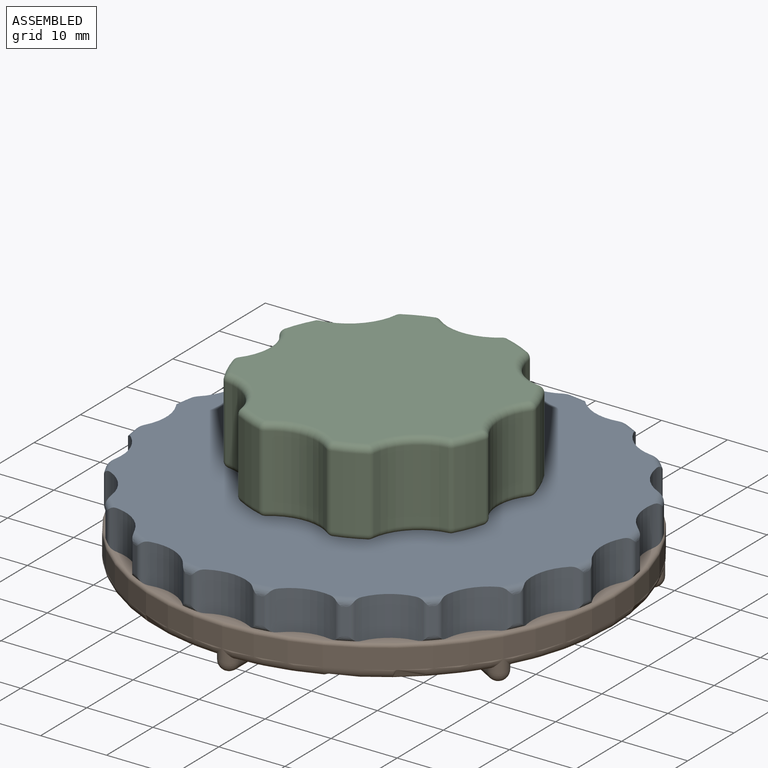
[diagram: assembled view]
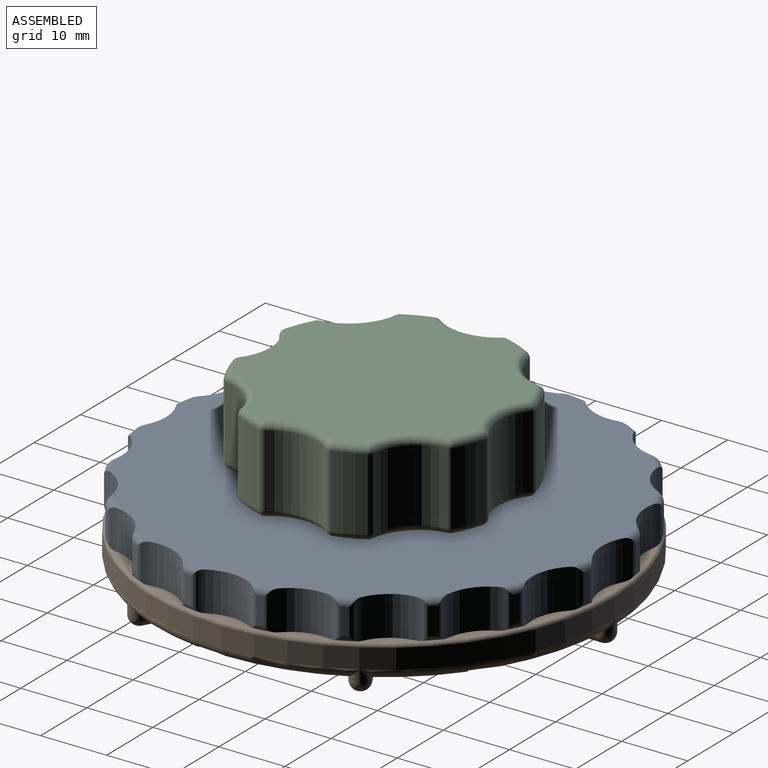
[diagram: assembled view, second angle]
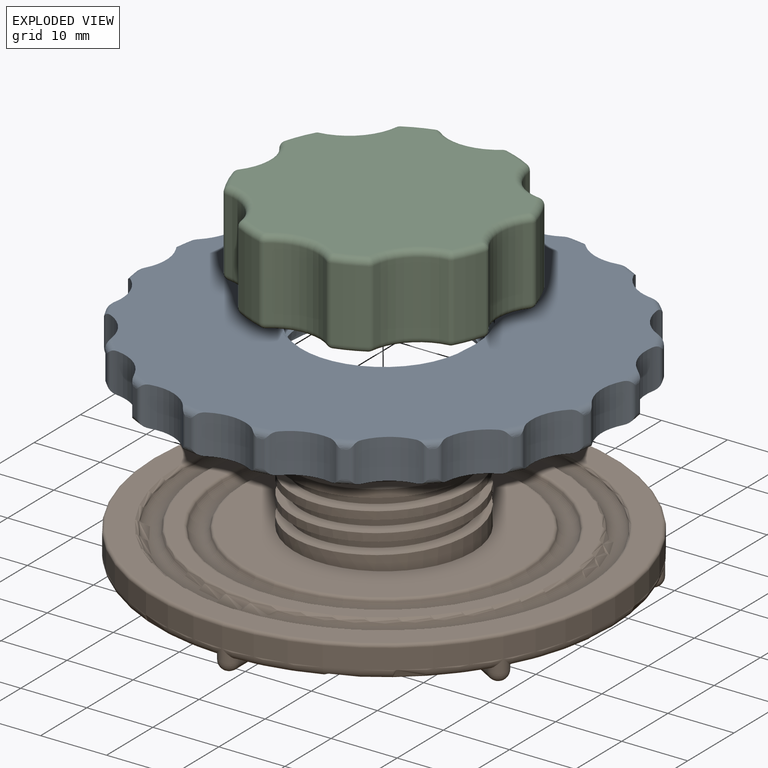
[diagram: exploded view]
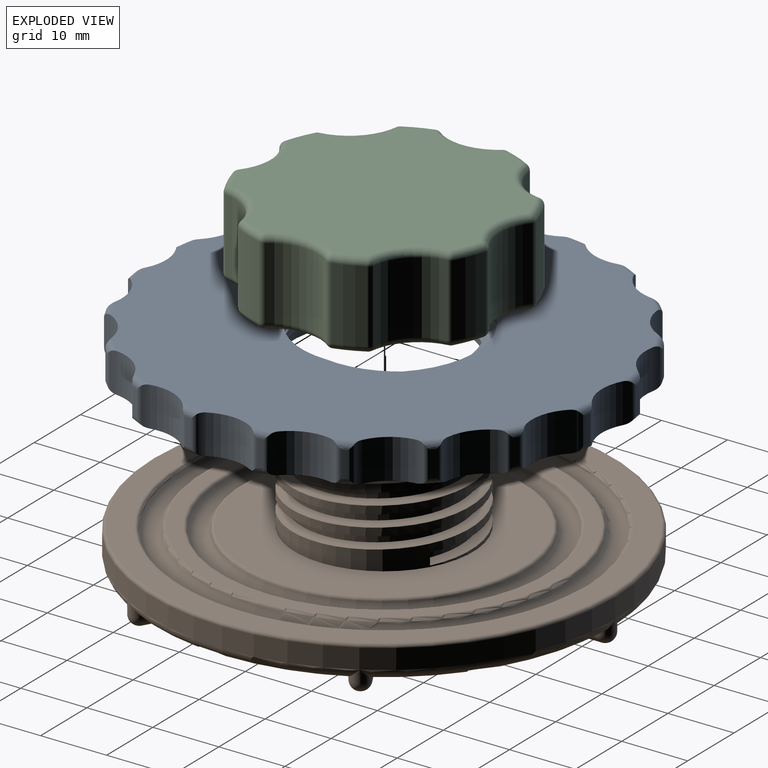
[diagram: exploded view, second angle]
ASSEMBLY  parts=3 mates=4
PART A: 136 faces, bbox 70.2x70.2x8.9 mm
  f0: plane 43x43mm, normal (0,0,-1), area 535.4mm2, adj f34,f135
  f1: plane 28.93x28.93mm, normal (0,0,-1), area 41.8mm2, adj f29,f135
  f2: cylinder r=35mm len=4mm, axis (0,0,-1), area 3.8mm2, adj f87,f88,f89,f90
  f3: cylinder r=35mm len=4mm, axis (0,0,-1), area 3.8mm2, adj f91,f92,f93,f94
  f4: cylinder r=35mm len=4mm, axis (0,0,-1), area 3.8mm2, adj f95,f96,f97,f98
  f5: cylinder r=35mm len=4mm, axis (0,0,-1), area 3.8mm2, adj f99,f100,f101,f102
  f6: cylinder r=35mm len=4mm, axis (0,0,-1), area 3.8mm2, adj f103,f104,f105,f106
  f7: cylinder r=35mm len=4mm, axis (0,0,-1), area 3.8mm2, adj f107,f108,f109,f110
  f8: cylinder r=35mm len=4mm, axis (0,0,-1), area 3.8mm2, adj f111,f112,f113,f114
  f9: cylinder r=35mm len=4mm, axis (0,0,-1), area 3.8mm2, adj f115,f116,f117,f118
  f10: cylinder r=35mm len=4mm, axis (0,0,-1), area 3.8mm2, adj f119,f120,f121,f122
  f11: cylinder r=35mm len=4mm, axis (0,0,-1), area 3.8mm2, adj f123,f124,f125,f126
  f12: cylinder r=35mm len=4mm, axis (0,0,-1), area 3.8mm2, adj f127,f128,f129,f130
  f13: cylinder r=35mm len=4mm, axis (0,0,-1), area 3.8mm2, adj f131,f132,f133,f134
  f14: cylinder r=35mm len=4mm, axis (0,0,-1), area 3.8mm2, adj f55,f56,f57,f58
  f15: cylinder r=35mm len=4mm, axis (0,0,-1), area 3.8mm2, adj f59,f60,f61,f62
  f16: cylinder r=35mm len=4mm, axis (0,0,-1), area 3.8mm2, adj f63,f64,f65,f66
  f17: cylinder r=35mm len=4mm, axis (0,0,-1), area 3.8mm2, adj f67,f68,f69,f70
  f18: cylinder r=35mm len=4mm, axis (0,0,-1), area 3.8mm2, adj f83,f84,f85,f86
  f19: cylinder r=35mm len=4mm, axis (0,0,-1), area 3.8mm2, adj f79,f80,f81,f82
  f20: cylinder r=35mm len=4mm, axis (0,0,-1), area 3.8mm2, adj f75,f76,f77,f78
  f21: plane 55x55mm, normal (0,0,-1), area 490.1mm2, adj f33,f34
  f22: plane 67.68x67.68mm, normal (0,0,-1), area 619.7mm2, adj f33,f35,f36,f37,f38,f39,f40,f41
  f23: bspline ~33.49x29mm, area 214.5mm2, adj f24,f27,f28,f29,f31,f32
  f24: cylinder r=12.5mm len=25mm, axis (0,0,1), area 130.9mm2, adj f23,f25,f31,f32
  f25: bspline ~33.49x29mm, area 206.6mm2, adj f24,f26,f27,f28,f31
  f26: plane 1.5x0.38mm, normal (0,-1,0), area 0.3mm2, adj f25,f29,f32
  f27: cylinder r=14mm len=28mm, axis (0,0,-1), area 110mm2, adj f23,f25,f28,f29
  f28: cylinder r=14mm len=28mm, axis (0,0,-1), area 36.8mm2, adj f23,f25,f27,f31
  f29: cylinder r=14mm len=28mm, axis (0,0,-1), area 126.8mm2, adj f1,f23,f26,f27,f32
  f30: cylinder r=35mm len=4mm, axis (0,0,-1), area 3.8mm2, adj f71,f72,f73,f74
  f31: plane 68.11x68.11mm, normal (0,0,1), area 2984.1mm2, adj f23,f24,f25,f28,f35,f36,f37,f38
  f32: plane 27.93x14.44mm, normal (0,0,-1), area 49.6mm2, adj f23,f24,f26,f29
  f33: torus R=29mm, axis (0,0,-1), area 858.7mm2, adj f21,f22
  f34: torus R=23mm, axis (0,0,-1), area 681mm2, adj f0,f21
  f35: cylinder r=7mm len=8.52mm, axis (0,0,1), area 54.3mm2, adj f22,f31,f71,f72,f74,f75,f77,f78
  f36: cylinder r=7mm len=8.1mm, axis (0,0,1), area 54.3mm2, adj f22,f31,f75,f76,f78,f79,f81,f82
  f37: cylinder r=7mm len=6.89mm, axis (0,0,1), area 54.3mm2, adj f22,f31,f79,f80,f82,f83,f85,f86
  f38: cylinder r=7mm len=6.89mm, axis (0,0,1), area 54.3mm2, adj f22,f31,f83,f84,f86,f87,f89,f90
  f39: cylinder r=7mm len=8.1mm, axis (0,0,1), area 54.3mm2, adj f22,f31,f67,f68,f70,f71,f73,f74
  f40: cylinder r=7mm len=6.89mm, axis (0,0,1), area 54.3mm2, adj f22,f31,f63,f64,f66,f67,f69,f70
  f41: cylinder r=7mm len=6.89mm, axis (0,0,1), area 54.3mm2, adj f22,f31,f59,f60,f62,f63,f65,f66
  f42: cylinder r=7mm len=8.1mm, axis (0,0,1), area 54.3mm2, adj f22,f31,f55,f56,f58,f59,f61,f62
  f43: cylinder r=7mm len=8.52mm, axis (0,0,1), area 54.3mm2, adj f22,f31,f55,f57,f58,f131,f132,f133
  f44: cylinder r=7mm len=8.1mm, axis (0,0,1), area 54.3mm2, adj f22,f31,f127,f128,f130,f132,f133,f134
  f45: cylinder r=7mm len=6.89mm, axis (0,0,1), area 54.3mm2, adj f22,f31,f123,f124,f126,f127,f129,f130
  f46: cylinder r=7mm len=6.89mm, axis (0,0,1), area 54.3mm2, adj f22,f31,f119,f120,f122,f123,f125,f126
  f47: cylinder r=7mm len=8.1mm, axis (0,0,1), area 54.3mm2, adj f22,f31,f115,f116,f118,f119,f121,f122
  f48: cylinder r=7mm len=8.52mm, axis (0,0,1), area 54.3mm2, adj f22,f31,f111,f112,f114,f115,f117,f118
  f49: cylinder r=7mm len=8.1mm, axis (0,0,1), area 54.3mm2, adj f22,f31,f107,f108,f110,f111,f113,f114
  f50: cylinder r=7mm len=6.89mm, axis (0,0,1), area 54.3mm2, adj f22,f31,f103,f104,f106,f107,f109,f110
  f51: cylinder r=7mm len=6.89mm, axis (0,0,1), area 54.3mm2, adj f22,f31,f99,f100,f102,f103,f105,f106
  f52: cylinder r=7mm len=8.1mm, axis (0,0,1), area 54.3mm2, adj f22,f31,f95,f96,f98,f99,f101,f102
  f53: cylinder r=7mm len=8.52mm, axis (0,0,1), area 54.3mm2, adj f22,f31,f91,f92,f94,f95,f97,f98
  f54: cylinder r=7mm len=8.1mm, axis (0,0,1), area 54.3mm2, adj f22,f31,f87,f88,f90,f91,f93,f94
  f55: torus R=34mm, axis (0,0,1), area 3.8mm2, adj f14,f31,f42,f43,f56,f57
  f56: cylinder r=1mm len=5.42mm, axis (0,0,-1), area 3.8mm2, adj f14,f42,f55,f58
  f57: cylinder r=1mm len=5.42mm, axis (0,0,-1), area 3.8mm2, adj f14,f43,f55,f58
  f58: torus R=34mm, axis (0,0,1), area 3.8mm2, adj f14,f22,f42,f43,f56,f57
  f59: torus R=34mm, axis (0,0,1), area 3.8mm2, adj f15,f31,f41,f42,f60,f61
  f60: cylinder r=1mm len=5.42mm, axis (0,0,-1), area 3.8mm2, adj f15,f41,f59,f62
  f61: cylinder r=1mm len=5.42mm, axis (0,0,-1), area 3.8mm2, adj f15,f42,f59,f62
  f62: torus R=34mm, axis (0,0,1), area 3.8mm2, adj f15,f22,f41,f42,f60,f61
  f63: torus R=34mm, axis (0,0,1), area 3.8mm2, adj f16,f31,f40,f41,f64,f65
  f64: cylinder r=1mm len=5.42mm, axis (0,0,-1), area 3.8mm2, adj f16,f40,f63,f66
  f65: cylinder r=1mm len=5.42mm, axis (0,0,-1), area 3.8mm2, adj f16,f41,f63,f66
  f66: torus R=34mm, axis (0,0,1), area 3.8mm2, adj f16,f22,f40,f41,f64,f65
  f67: torus R=34mm, axis (0,0,1), area 3.8mm2, adj f17,f31,f39,f40,f68,f69
  f68: cylinder r=1mm len=5.42mm, axis (0,0,-1), area 3.8mm2, adj f17,f39,f67,f70
  f69: cylinder r=1mm len=5.42mm, axis (0,0,-1), area 3.8mm2, adj f17,f40,f67,f70
  f70: torus R=34mm, axis (0,0,1), area 3.8mm2, adj f17,f22,f39,f40,f68,f69
  f71: torus R=34mm, axis (0,0,1), area 3.8mm2, adj f30,f31,f35,f39,f72,f73
  f72: cylinder r=1mm len=5.42mm, axis (0,0,-1), area 3.8mm2, adj f30,f35,f71,f74
  f73: cylinder r=1mm len=5.42mm, axis (0,0,-1), area 3.8mm2, adj f30,f39,f71,f74
  f74: torus R=34mm, axis (0,0,1), area 3.8mm2, adj f22,f30,f35,f39,f72,f73
  f75: torus R=34mm, axis (0,0,1), area 3.8mm2, adj f20,f31,f35,f36,f76,f77
  f76: cylinder r=1mm len=5.42mm, axis (0,0,-1), area 3.8mm2, adj f20,f36,f75,f78
  f77: cylinder r=1mm len=5.42mm, axis (0,0,-1), area 3.8mm2, adj f20,f35,f75,f78
  f78: torus R=34mm, axis (0,0,1), area 3.8mm2, adj f20,f22,f35,f36,f76,f77
  f79: torus R=34mm, axis (0,0,1), area 3.8mm2, adj f19,f31,f36,f37,f80,f81
  f80: cylinder r=1mm len=5.42mm, axis (0,0,-1), area 3.8mm2, adj f19,f37,f79,f82
  f81: cylinder r=1mm len=5.42mm, axis (0,0,-1), area 3.8mm2, adj f19,f36,f79,f82
  f82: torus R=34mm, axis (0,0,1), area 3.8mm2, adj f19,f22,f36,f37,f80,f81
  f83: torus R=34mm, axis (0,0,1), area 3.8mm2, adj f18,f31,f37,f38,f84,f85
  f84: cylinder r=1mm len=5.42mm, axis (0,0,-1), area 3.8mm2, adj f18,f38,f83,f86
  f85: cylinder r=1mm len=5.42mm, axis (0,0,-1), area 3.8mm2, adj f18,f37,f83,f86
  f86: torus R=34mm, axis (0,0,1), area 3.8mm2, adj f18,f22,f37,f38,f84,f85
  f87: torus R=34mm, axis (0,0,1), area 3.8mm2, adj f2,f31,f38,f54,f88,f89
  f88: cylinder r=1mm len=5.42mm, axis (0,0,-1), area 3.8mm2, adj f2,f54,f87,f90
  f89: cylinder r=1mm len=5.42mm, axis (0,0,-1), area 3.8mm2, adj f2,f38,f87,f90
  f90: torus R=34mm, axis (0,0,1), area 3.8mm2, adj f2,f22,f38,f54,f88,f89
  f91: torus R=34mm, axis (0,0,1), area 3.8mm2, adj f3,f31,f53,f54,f92,f93
  f92: cylinder r=1mm len=5.42mm, axis (0,0,-1), area 3.8mm2, adj f3,f53,f91,f94
  f93: cylinder r=1mm len=5.42mm, axis (0,0,-1), area 3.8mm2, adj f3,f54,f91,f94
  f94: torus R=34mm, axis (0,0,1), area 3.8mm2, adj f3,f22,f53,f54,f92,f93
  f95: torus R=34mm, axis (0,0,1), area 3.8mm2, adj f4,f31,f52,f53,f96,f97
  f96: cylinder r=1mm len=5.42mm, axis (0,0,-1), area 3.8mm2, adj f4,f52,f95,f98
  f97: cylinder r=1mm len=5.42mm, axis (0,0,-1), area 3.8mm2, adj f4,f53,f95,f98
  f98: torus R=34mm, axis (0,0,1), area 3.8mm2, adj f4,f22,f52,f53,f96,f97
  f99: torus R=34mm, axis (0,0,1), area 3.8mm2, adj f5,f31,f51,f52,f100,f101
  f100: cylinder r=1mm len=5.42mm, axis (0,0,-1), area 3.8mm2, adj f5,f51,f99,f102
  f101: cylinder r=1mm len=5.42mm, axis (0,0,-1), area 3.8mm2, adj f5,f52,f99,f102
  f102: torus R=34mm, axis (0,0,1), area 3.8mm2, adj f5,f22,f51,f52,f100,f101
  f103: torus R=34mm, axis (0,0,1), area 3.8mm2, adj f6,f31,f50,f51,f104,f105
  f104: cylinder r=1mm len=5.42mm, axis (0,0,-1), area 3.8mm2, adj f6,f50,f103,f106
  f105: cylinder r=1mm len=5.42mm, axis (0,0,-1), area 3.8mm2, adj f6,f51,f103,f106
  f106: torus R=34mm, axis (0,0,1), area 3.8mm2, adj f6,f22,f50,f51,f104,f105
  f107: torus R=34mm, axis (0,0,1), area 3.8mm2, adj f7,f31,f49,f50,f108,f109
  f108: cylinder r=1mm len=5.42mm, axis (0,0,-1), area 3.8mm2, adj f7,f49,f107,f110
  f109: cylinder r=1mm len=5.42mm, axis (0,0,-1), area 3.8mm2, adj f7,f50,f107,f110
  f110: torus R=34mm, axis (0,0,1), area 3.8mm2, adj f7,f22,f49,f50,f108,f109
  f111: torus R=34mm, axis (0,0,1), area 3.8mm2, adj f8,f31,f48,f49,f112,f113
  f112: cylinder r=1mm len=5.42mm, axis (0,0,-1), area 3.8mm2, adj f8,f48,f111,f114
  f113: cylinder r=1mm len=5.42mm, axis (0,0,-1), area 3.8mm2, adj f8,f49,f111,f114
  f114: torus R=34mm, axis (0,0,1), area 3.8mm2, adj f8,f22,f48,f49,f112,f113
  f115: torus R=34mm, axis (0,0,1), area 3.8mm2, adj f9,f31,f47,f48,f116,f117
  f116: cylinder r=1mm len=5.42mm, axis (0,0,-1), area 3.8mm2, adj f9,f47,f115,f118
  f117: cylinder r=1mm len=5.42mm, axis (0,0,-1), area 3.8mm2, adj f9,f48,f115,f118
  f118: torus R=34mm, axis (0,0,1), area 3.8mm2, adj f9,f22,f47,f48,f116,f117
  f119: torus R=34mm, axis (0,0,1), area 3.8mm2, adj f10,f31,f46,f47,f120,f121
  f120: cylinder r=1mm len=5.42mm, axis (0,0,-1), area 3.8mm2, adj f10,f46,f119,f122
  f121: cylinder r=1mm len=5.42mm, axis (0,0,-1), area 3.8mm2, adj f10,f47,f119,f122
  f122: torus R=34mm, axis (0,0,1), area 3.8mm2, adj f10,f22,f46,f47,f120,f121
  f123: torus R=34mm, axis (0,0,1), area 3.8mm2, adj f11,f31,f45,f46,f124,f125
  f124: cylinder r=1mm len=5.42mm, axis (0,0,-1), area 3.8mm2, adj f11,f45,f123,f126
  f125: cylinder r=1mm len=5.42mm, axis (0,0,-1), area 3.8mm2, adj f11,f46,f123,f126
  f126: torus R=34mm, axis (0,0,1), area 3.8mm2, adj f11,f22,f45,f46,f124,f125
  f127: torus R=34mm, axis (0,0,1), area 3.8mm2, adj f12,f31,f44,f45,f128,f129
  f128: cylinder r=1mm len=5.42mm, axis (0,0,-1), area 3.8mm2, adj f12,f44,f127,f130
  f129: cylinder r=1mm len=5.42mm, axis (0,0,-1), area 3.8mm2, adj f12,f45,f127,f130
  f130: torus R=34mm, axis (0,0,1), area 3.8mm2, adj f12,f22,f44,f45,f128,f129
  f131: cylinder r=1mm len=5.42mm, axis (0,0,-1), area 3.8mm2, adj f13,f43,f132,f133
  f132: torus R=34mm, axis (0,0,1), area 3.8mm2, adj f13,f22,f43,f44,f131,f134
  f133: torus R=34mm, axis (0,0,1), area 3.8mm2, adj f13,f31,f43,f44,f131,f134
  f134: cylinder r=1mm len=5.42mm, axis (0,0,-1), area 3.8mm2, adj f13,f44,f132,f133
  f135: torus R=15.78mm, axis (0,0,1), area 537.3mm2, adj f0,f1
PART B: 115 faces, bbox 76.1x76.1x22.4 mm
  f0: cone r=0mm half-angle=59deg, axis (0,0,-1), area 60.6mm2, adj f6,f7,f8,f9,f10,f11,f12,f13
  f1: plane 30.87x29.17mm, normal (0,0,-1), area 490mm2, adj f60,f70,f71,f90,f95,f108
  f2: plane 30.97x28.23mm, normal (0,0,-1), area 490mm2, adj f60,f68,f69,f83,f95,f104
  f3: plane 30.97x28.23mm, normal (0,0,-1), area 490mm2, adj f60,f66,f67,f74,f83,f93
  f4: plane 30.87x29.17mm, normal (0,0,-1), area 490mm2, adj f60,f64,f65,f73,f74,f81
  f5: plane 30.97x28.23mm, normal (0,0,-1), area 490mm2, adj f60,f61,f63,f73,f79,f92
  f6: plane 10x4.41mm, normal (-0.62,-0.78,0), area 48mm2, adj f0,f8,f27,f52,f53,f60
  f7: plane 10.01x5.51mm, normal (-0.22,0.97,0), area 48mm2, adj f0,f8,f27,f52,f53,f60
  f8: cylinder r=2.5mm len=6mm, axis (0,0,1), area 1.1mm2, adj f0,f6,f7,f27
  f9: plane 10x5.65mm, normal (-1,0,0), area 48mm2, adj f0,f11,f27,f52,f54,f60
  f10: plane 10x4.41mm, normal (0.62,0.78,0), area 48mm2, adj f0,f11,f27,f52,f54,f60
  f11: cylinder r=2.5mm len=6mm, axis (0,0,1), area 1.1mm2, adj f0,f9,f10,f27
  f12: plane 10x5.65mm, normal (1,0,0), area 48mm2, adj f0,f13,f27,f52,f55,f60
  f13: cylinder r=2.5mm len=6mm, axis (0,0,1), area 1.1mm2, adj f0,f12,f14,f27
  f14: plane 10x4.41mm, normal (-0.62,0.78,0), area 48mm2, adj f0,f13,f27,f52,f55,f60
  f15: plane 10x5.09mm, normal (0.9,-0.43,0), area 48mm2, adj f0,f17,f27,f52,f56,f60
  f16: plane 10x5.09mm, normal (-0.9,-0.43,0), area 48mm2, adj f0,f17,f27,f52,f56,f60
  f17: cylinder r=2.5mm len=6mm, axis (0,0,1), area 1.1mm2, adj f0,f15,f16,f27
  f18: plane 10x5.5mm, normal (0.22,-0.97,0), area 48mm2, adj f0,f20,f27,f52,f57,f60
  f19: plane 10x5.09mm, normal (-0.9,0.43,0), area 48mm2, adj f0,f20,f27,f52,f57,f60
  f20: cylinder r=2.5mm len=6mm, axis (0,0,1), area 1.1mm2, adj f0,f18,f19,f27
  f21: plane 10x5.09mm, normal (0.9,0.43,0), area 48mm2, adj f0,f23,f27,f52,f58,f60
  f22: plane 10x5.5mm, normal (-0.22,-0.97,0), area 48mm2, adj f0,f23,f27,f52,f58,f60
  f23: cylinder r=2.5mm len=6mm, axis (0,0,1), area 1.1mm2, adj f0,f21,f22,f27
  f24: plane 10x5.5mm, normal (0.22,0.97,0), area 48mm2, adj f0,f26,f27,f52,f59,f60
  f25: plane 10x4.41mm, normal (0.62,-0.78,0), area 48mm2, adj f0,f26,f27,f52,f59,f60
  f26: cylinder r=2.5mm len=6mm, axis (0,0,1), area 1.1mm2, adj f0,f24,f25,f27
  f27: plane 15.92x15.59mm, normal (0,0,1), area 94.2mm2, adj f6,f7,f8,f9,f10,f11,f12,f13
  f28: plane 24x24mm, normal (0,0,1), area 168.9mm2, adj f43,f50
  f29: cylinder r=13.5mm len=27mm, axis (0,0,1), area 229mm2, adj f33,f34,f35,f36,f48
  f30: cylinder r=13.5mm len=11.69mm, axis (0,0,1), area 3.5mm2, adj f31,f34,f49
  f31: cylinder r=13.5mm len=27mm, axis (0,0,1), area 94.9mm2, adj f30,f32,f34,f35,f49
  f32: cylinder r=13.5mm len=27mm, axis (0,0,1), area 101.8mm2, adj f31,f33,f34,f35
  f33: cylinder r=13.5mm len=27mm, axis (0,0,1), area 101.8mm2, adj f29,f32,f34,f35
  f34: bspline ~32.33x28mm, area 496.4mm2, adj f29,f30,f31,f32,f33,f43,f44,f45
  f35: bspline ~32.33x28mm, area 558mm2, adj f29,f31,f32,f33,f43,f44,f45,f46
  f36: plane 42.13x42.13mm, normal (0,0,1), area 821.3mm2, adj f29,f109
  f37: torus R=23mm, axis (0,0,1), area 571.5mm2, adj f109,f110
  f38: plane 54.13x54.13mm, normal (0,0,1), area 347.5mm2, adj f110,f111
  f39: torus R=29mm, axis (0,0,1), area 720.5mm2, adj f111,f112
  f40: plane 69x69mm, normal (0,0,1), area 732.6mm2, adj f112,f113
  f41: cylinder r=35mm len=70mm, axis (0,0,1), area 659.7mm2, adj f81,f92,f93,f103,f104,f108,f113
  f42: plane 30.97x28.23mm, normal (0,0,-1), area 490mm2, adj f60,f62,f72,f79,f90,f103
  f43: cylinder r=12mm len=24mm, axis (0,0,-1), area 162.9mm2, adj f28,f34,f35,f44,f49
  f44: cylinder r=12mm len=24mm, axis (0,0,-1), area 90.5mm2, adj f34,f35,f43,f45
  f45: cylinder r=12mm len=24mm, axis (0,0,-1), area 90.4mm2, adj f34,f35,f44,f46
  f46: cylinder r=12mm len=24mm, axis (0,0,-1), area 90.5mm2, adj f34,f35,f45,f47
  f47: cylinder r=12mm len=18mm, axis (0,0,-1), area 30.2mm2, adj f34,f35,f46,f48
  f48: plane 1.8x1.3mm, normal (-0.87,0.5,0), area 2.2mm2, adj f29,f34,f35,f47
  f49: plane 26.28x19.86mm, normal (0,0,1), area 59.9mm2, adj f30,f31,f34,f35,f43
  f50: cylinder r=9.5mm len=19mm, axis (0,0,1), area 119.4mm2, adj f28,f51
  f51: plane 19x19mm, normal (0,0,1), area 82.5mm2, adj f50,f52
  f52: cylinder r=8mm len=16mm, axis (0,0,1), area 387.4mm2, adj f6,f7,f9,f10,f12,f14,f15,f16
  f53: plane 4.96x3.55mm, normal (0,0,1), area 11.5mm2, adj f6,f7,f52,f60
  f54: plane 4.58x4.1mm, normal (0,0,1), area 11.5mm2, adj f9,f10,f52,f60
  f55: plane 4.58x4.1mm, normal (0,0,1), area 11.5mm2, adj f12,f14,f52,f60
  f56: plane 5.09x3.15mm, normal (0,0,1), area 11.5mm2, adj f15,f16,f52,f60
  f57: plane 4.65x4.49mm, normal (0,0,1), area 11.5mm2, adj f18,f19,f52,f60
  f58: plane 4.65x4.49mm, normal (0,0,1), area 11.5mm2, adj f21,f22,f52,f60
  f59: plane 4.96x3.55mm, normal (0,0,1), area 11.5mm2, adj f24,f25,f52,f60
  f60: cylinder r=5mm len=10mm, axis (0,0,-1), area 270.9mm2, adj f0,f1,f2,f3,f4,f5,f6,f7
  f61: plane 27x0.5mm, normal (1,0,0), area 13.5mm2, adj f5,f79,f88,f92,f97
  f62: plane 27x0.5mm, normal (-1,0,0), area 13.5mm2, adj f42,f79,f88,f97,f103
  f63: plane 23.38x13.5mm, normal (-0.5,0.87,0), area 13.5mm2, adj f5,f73,f77,f85,f92
  f64: plane 23.38x13.5mm, normal (0.5,-0.87,0), area 13.5mm2, adj f4,f73,f77,f81,f85
  f65: plane 23.38x13.5mm, normal (0.5,0.87,0), area 13.5mm2, adj f4,f74,f78,f81,f86
  f66: plane 23.38x13.5mm, normal (-0.5,-0.87,0), area 13.5mm2, adj f3,f74,f78,f86,f93
  f67: plane 27x0.5mm, normal (1,0,0), area 13.5mm2, adj f3,f83,f89,f93,f98
  f68: plane 27x0.5mm, normal (-1,0,0), area 13.5mm2, adj f2,f83,f89,f98,f104
  f69: plane 23.38x13.5mm, normal (0.5,-0.87,0), area 13.5mm2, adj f2,f95,f101,f104,f107
  f70: plane 23.38x13.5mm, normal (-0.5,0.87,0), area 13.5mm2, adj f1,f95,f101,f107,f108
  f71: plane 23.38x13.5mm, normal (-0.5,-0.87,0), area 13.5mm2, adj f1,f90,f100,f106,f108
  f72: plane 23.38x13.5mm, normal (0.5,0.87,0), area 13.5mm2, adj f42,f90,f100,f103,f106
  f73: cylinder r=1.5mm len=2.8mm, axis (0,0,-1), area 2.4mm2, adj f4,f5,f63,f64,f75
  f74: cylinder r=1.5mm len=2.8mm, axis (0,0,-1), area 2.4mm2, adj f3,f4,f65,f66,f76
  f75: sphere r=1.5mm, area 7.1mm2, adj f73,f77
  f76: sphere r=1.5mm, area 4.5mm2, adj f74,f78
  f77: cylinder r=1.5mm len=24.88mm, axis (0.87,0.5,0), area 127.2mm2, adj f63,f64,f75,f80
  f78: cylinder r=1.5mm len=24.88mm, axis (-0.87,0.5,0), area 127.2mm2, adj f65,f66,f76,f82
  f79: cylinder r=1.5mm len=3mm, axis (0,0,-1), area 2.4mm2, adj f5,f42,f61,f62,f84
  f80: sphere r=1.5mm, area 6.2mm2, adj f77,f85
  f81: torus R=33.5mm, axis (0,0,1), area 80.5mm2, adj f4,f41,f64,f65,f85,f86
  f82: sphere r=1.5mm, area 6.2mm2, adj f78,f86
  f83: cylinder r=1.5mm len=3mm, axis (0,0,-1), area 2.4mm2, adj f2,f3,f67,f68,f87
  f84: sphere r=1.5mm, area 7.1mm2, adj f79,f88
  f85: cylinder r=1.5mm len=2.8mm, axis (0,0,1), area 5mm2, adj f63,f64,f80,f81,f92
  f86: cylinder r=1.5mm len=2.8mm, axis (0,0,1), area 5mm2, adj f65,f66,f81,f82,f93
  f87: sphere r=1.5mm, area 7.1mm2, adj f83,f89
  f88: cylinder r=1.5mm len=27mm, axis (0,1,0), area 127.2mm2, adj f61,f62,f84,f91
  f89: cylinder r=1.5mm len=27mm, axis (0,1,0), area 127.2mm2, adj f67,f68,f87,f94
  f90: cylinder r=1.5mm len=2.8mm, axis (0,0,-1), area 2.4mm2, adj f1,f42,f71,f72,f96
  f91: sphere r=1.5mm, area 7.1mm2, adj f88,f97
  f92: torus R=33.5mm, axis (0,0,1), area 80.5mm2, adj f5,f41,f61,f63,f85,f97
  f93: torus R=33.5mm, axis (0,0,1), area 80.5mm2, adj f3,f41,f66,f67,f86,f98
  f94: sphere r=1.5mm, area 7.1mm2, adj f89,f98
  f95: cylinder r=1.5mm len=2.8mm, axis (0,0,-1), area 2.4mm2, adj f1,f2,f69,f70,f99
  f96: sphere r=1.5mm, area 6.2mm2, adj f90,f100
  f97: cylinder r=1.5mm len=3mm, axis (0,0,1), area 5mm2, adj f61,f62,f91,f92,f103
  f98: cylinder r=1.5mm len=3mm, axis (0,0,1), area 5mm2, adj f67,f68,f93,f94,f104
  f99: sphere r=1.5mm, area 5.7mm2, adj f95,f101
  f100: cylinder r=1.5mm len=24.88mm, axis (-0.87,0.5,0), area 127.2mm2, adj f71,f72,f96,f102
  f101: cylinder r=1.5mm len=24.88mm, axis (0.87,0.5,0), area 127.2mm2, adj f69,f70,f99,f105
  f102: sphere r=1.5mm, area 7.9mm2, adj f100,f106
  f103: torus R=33.5mm, axis (0,0,1), area 80.5mm2, adj f41,f42,f62,f72,f97,f106
  f104: torus R=33.5mm, axis (0,0,1), area 80.5mm2, adj f2,f41,f68,f69,f98,f107
  f105: sphere r=1.5mm, area 7.1mm2, adj f101,f107
  f106: cylinder r=1.5mm len=2.8mm, axis (0,0,1), area 5mm2, adj f71,f72,f102,f103,f108
  f107: cylinder r=1.5mm len=2.8mm, axis (0,0,1), area 5mm2, adj f69,f70,f104,f105,f108
  f108: torus R=33.5mm, axis (0,0,1), area 80.5mm2, adj f1,f41,f70,f71,f106,f107
  f109: torus R=21.06mm, axis (0,0,1), area 88.4mm2, adj f36,f37
  f110: torus R=24.94mm, axis (0,0,-1), area 102.1mm2, adj f37,f38
  f111: torus R=27.06mm, axis (0,0,1), area 113.2mm2, adj f38,f39
  f112: torus R=30.94mm, axis (0,0,-1), area 126.9mm2, adj f39,f40
  f113: torus R=34.5mm, axis (0,0,-1), area 171.8mm2, adj f40,f41
  f114: cylinder r=1mm len=5.1mm, axis (0,0,1), area 32mm2, adj f0,f27
PART C: 109 faces, bbox 38.7x38.7x13.4 mm
  f0: cylinder r=20mm len=11mm, axis (0,0,-1), area 50.8mm2, adj f45,f46,f54,f55
  f1: cylinder r=20mm len=11mm, axis (0,0,-1), area 50.8mm2, adj f29,f33,f34,f35
  f2: cylinder r=20mm len=11mm, axis (0,0,-1), area 50.8mm2, adj f41,f42,f52,f53
  f3: cylinder r=20mm len=11mm, axis (0,0,-1), area 50.8mm2, adj f61,f62,f72,f73
  f4: cylinder r=20mm len=11mm, axis (0,0,-1), area 50.8mm2, adj f81,f82,f92,f93
  f5: cylinder r=20mm len=11mm, axis (0,0,-1), area 50.8mm2, adj f97,f102,f105,f108
  f6: cylinder r=20mm len=11mm, axis (0,0,-1), area 50.8mm2, adj f85,f86,f94,f95
  f7: plane 1.5x1.3mm, normal (0,-1,0), area 1.7mm2, adj f9,f13,f15,f16
  f8: bspline ~33.49x29mm, area 333.2mm2, adj f9,f13,f14,f16
  f9: cylinder r=14mm len=28mm, axis (0,0,-1), area 354.6mm2, adj f7,f8,f10,f13,f14,f15
  f10: plane 27.93x26.5mm, normal (0,0,-1), area 313.2mm2, adj f9,f14,f15,f16,f26
  f11: cylinder r=20mm len=11mm, axis (0,0,-1), area 50.8mm2, adj f65,f66,f74,f75
  f12: plane 36.55x36.55mm, normal (0,0,1), area 993.1mm2, adj f34,f43,f44,f53,f54,f63,f64,f73
  f13: plane 36.55x36.55mm, normal (0,0,-1), area 383.8mm2, adj f7,f8,f9,f29,f32,f36,f41,f46
  f14: plane 1.3x0.75mm, normal (0.87,-0.5,0), area 0.2mm2, adj f8,f9,f10
  f15: bspline ~33.49x29mm, area 290.5mm2, adj f7,f9,f10,f16
  f16: cylinder r=12.5mm len=25mm, axis (0,0,1), area 196.3mm2, adj f7,f8,f10,f15
  f17: cylinder r=7.5mm len=11mm, axis (0,0,1), area 108.6mm2, adj f75,f76,f84,f85
  f18: cylinder r=7.5mm len=11mm, axis (0,0,1), area 108.6mm2, adj f95,f96,f104,f105
  f19: cylinder r=7.5mm len=11mm, axis (0,0,1), area 108.6mm2, adj f91,f92,f102,f103
  f20: cylinder r=7.5mm len=11mm, axis (0,0,1), area 108.6mm2, adj f71,f72,f82,f83
  f21: cylinder r=7.5mm len=11mm, axis (0,0,1), area 108.6mm2, adj f51,f52,f62,f63
  f22: cylinder r=7.5mm len=11mm, axis (0,0,1), area 108.6mm2, adj f32,f33,f42,f43
  f23: cylinder r=7.5mm len=11mm, axis (0,0,1), area 108.6mm2, adj f35,f36,f44,f45
  f24: cylinder r=7.5mm len=11mm, axis (0,0,1), area 108.6mm2, adj f55,f56,f64,f65
  f25: cylinder r=7.5mm len=15mm, axis (0,0,1), area 94.2mm2, adj f27,f28
  f26: cylinder r=9mm len=18mm, axis (0,0,1), area 113.1mm2, adj f10,f27
  f27: plane 18x18mm, normal (0,0,-1), area 77.8mm2, adj f25,f26
  f28: plane 15x15mm, normal (0,0,-1), area 176.7mm2, adj f25
  f29: torus R=19mm, axis (0,0,1), area 7.1mm2, adj f1,f13,f30,f31
  f30: sphere r=1mm, area 0.9mm2, adj f29,f32,f33
  f31: sphere r=1mm, area 0.9mm2, adj f29,f35,f36
  f32: torus R=8.5mm, axis (0,0,1), area 16.3mm2, adj f13,f22,f30,f37
  f33: cylinder r=1mm len=11mm, axis (0,0,-1), area 10.3mm2, adj f1,f22,f30,f38
  f34: torus R=19mm, axis (0,0,1), area 7.1mm2, adj f1,f12,f38,f39
  f35: cylinder r=1mm len=11mm, axis (0,0,-1), area 10.3mm2, adj f1,f23,f31,f39
  f36: torus R=8.5mm, axis (0,0,1), area 16.3mm2, adj f13,f23,f31,f40
  f37: sphere r=1mm, area 0.9mm2, adj f32,f41,f42
  f38: sphere r=1mm, area 0.9mm2, adj f33,f34,f43
  f39: sphere r=1mm, area 0.9mm2, adj f34,f35,f44
  f40: sphere r=1mm, area 0.9mm2, adj f36,f45,f46
  f41: torus R=19mm, axis (0,0,1), area 7.1mm2, adj f2,f13,f37,f47
  f42: cylinder r=1mm len=11mm, axis (0,0,-1), area 10.3mm2, adj f2,f22,f37,f48
  f43: torus R=8.5mm, axis (0,0,1), area 16.3mm2, adj f12,f22,f38,f48
  f44: torus R=8.5mm, axis (0,0,1), area 16.3mm2, adj f12,f23,f39,f49
  f45: cylinder r=1mm len=11mm, axis (0,0,-1), area 10.3mm2, adj f0,f23,f40,f49
  f46: torus R=19mm, axis (0,0,1), area 7.1mm2, adj f0,f13,f40,f50
  f47: sphere r=1mm, area 0.9mm2, adj f41,f51,f52
  f48: sphere r=1mm, area 0.9mm2, adj f42,f43,f53
  f49: sphere r=1mm, area 0.9mm2, adj f44,f45,f54
  f50: sphere r=1mm, area 0.9mm2, adj f46,f55,f56
  f51: torus R=8.5mm, axis (0,0,1), area 16.3mm2, adj f13,f21,f47,f57
  f52: cylinder r=1mm len=11mm, axis (0,0,-1), area 10.3mm2, adj f2,f21,f47,f58
  f53: torus R=19mm, axis (0,0,1), area 7.1mm2, adj f2,f12,f48,f58
  f54: torus R=19mm, axis (0,0,1), area 7.1mm2, adj f0,f12,f49,f59
  f55: cylinder r=1mm len=11mm, axis (0,0,-1), area 10.3mm2, adj f0,f24,f50,f59
  f56: torus R=8.5mm, axis (0,0,1), area 16.3mm2, adj f13,f24,f50,f60
  f57: sphere r=1mm, area 0.9mm2, adj f51,f61,f62
  f58: sphere r=1mm, area 0.9mm2, adj f52,f53,f63
  f59: sphere r=1mm, area 0.9mm2, adj f54,f55,f64
  f60: sphere r=1mm, area 0.9mm2, adj f56,f65,f66
  f61: torus R=19mm, axis (0,0,1), area 7.1mm2, adj f3,f13,f57,f67
  f62: cylinder r=1mm len=11mm, axis (0,0,-1), area 10.3mm2, adj f3,f21,f57,f68
  f63: torus R=8.5mm, axis (0,0,1), area 16.3mm2, adj f12,f21,f58,f68
  f64: torus R=8.5mm, axis (0,0,1), area 16.3mm2, adj f12,f24,f59,f69
  f65: cylinder r=1mm len=11mm, axis (0,0,-1), area 10.3mm2, adj f11,f24,f60,f69
  f66: torus R=19mm, axis (0,0,1), area 7.1mm2, adj f11,f13,f60,f70
  f67: sphere r=1mm, area 0.9mm2, adj f61,f71,f72
  f68: sphere r=1mm, area 0.9mm2, adj f62,f63,f73
  f69: sphere r=1mm, area 0.9mm2, adj f64,f65,f74
  f70: sphere r=1mm, area 0.9mm2, adj f66,f75,f76
  f71: torus R=8.5mm, axis (0,0,1), area 16.3mm2, adj f13,f20,f67,f77
  f72: cylinder r=1mm len=11mm, axis (0,0,-1), area 10.3mm2, adj f3,f20,f67,f78
  f73: torus R=19mm, axis (0,0,1), area 7.1mm2, adj f3,f12,f68,f78
  f74: torus R=19mm, axis (0,0,1), area 7.1mm2, adj f11,f12,f69,f79
  f75: cylinder r=1mm len=11mm, axis (0,0,-1), area 10.3mm2, adj f11,f17,f70,f79
  f76: torus R=8.5mm, axis (0,0,1), area 16.3mm2, adj f13,f17,f70,f80
  f77: sphere r=1mm, area 0.9mm2, adj f71,f81,f82
  f78: sphere r=1mm, area 0.9mm2, adj f72,f73,f83
  f79: sphere r=1mm, area 0.9mm2, adj f74,f75,f84
  f80: sphere r=1mm, area 0.9mm2, adj f76,f85,f86
  f81: torus R=19mm, axis (0,0,1), area 7.1mm2, adj f4,f13,f77,f87
  f82: cylinder r=1mm len=11mm, axis (0,0,-1), area 10.3mm2, adj f4,f20,f77,f88
  f83: torus R=8.5mm, axis (0,0,1), area 16.3mm2, adj f12,f20,f78,f88
  f84: torus R=8.5mm, axis (0,0,1), area 16.3mm2, adj f12,f17,f79,f89
  f85: cylinder r=1mm len=11mm, axis (0,0,-1), area 10.3mm2, adj f6,f17,f80,f89
  f86: torus R=19mm, axis (0,0,1), area 7.1mm2, adj f6,f13,f80,f90
  f87: sphere r=1mm, area 0.9mm2, adj f81,f91,f92
  f88: sphere r=1mm, area 0.9mm2, adj f82,f83,f93
  f89: sphere r=1mm, area 0.9mm2, adj f84,f85,f94
  f90: sphere r=1mm, area 0.9mm2, adj f86,f95,f96
  f91: torus R=8.5mm, axis (0,0,1), area 16.3mm2, adj f13,f19,f87,f98
  f92: cylinder r=1mm len=11mm, axis (0,0,-1), area 10.3mm2, adj f4,f19,f87,f99
  f93: torus R=19mm, axis (0,0,1), area 7.1mm2, adj f4,f12,f88,f99
  f94: torus R=19mm, axis (0,0,1), area 7.1mm2, adj f6,f12,f89,f100
  f95: cylinder r=1mm len=11mm, axis (0,0,-1), area 10.3mm2, adj f6,f18,f90,f100
  f96: torus R=8.5mm, axis (0,0,1), area 16.3mm2, adj f13,f18,f90,f101
  f97: torus R=19mm, axis (0,0,1), area 7.1mm2, adj f5,f13,f98,f101
  f98: sphere r=1mm, area 0.9mm2, adj f91,f97,f102
  f99: sphere r=1mm, area 0.9mm2, adj f92,f93,f103
  f100: sphere r=1mm, area 0.9mm2, adj f94,f95,f104
  f101: sphere r=1mm, area 0.9mm2, adj f96,f97,f105
  f102: cylinder r=1mm len=11mm, axis (0,0,-1), area 10.3mm2, adj f5,f19,f98,f106
  f103: torus R=8.5mm, axis (0,0,1), area 16.3mm2, adj f12,f19,f99,f106
  f104: torus R=8.5mm, axis (0,0,1), area 16.3mm2, adj f12,f18,f100,f107
  f105: cylinder r=1mm len=11mm, axis (0,0,-1), area 10.3mm2, adj f5,f18,f101,f107
  f106: sphere r=1mm, area 0.9mm2, adj f102,f103,f108
  f107: sphere r=1mm, area 0.9mm2, adj f104,f105,f108
  f108: torus R=19mm, axis (0,0,1), area 7.1mm2, adj f5,f12,f106,f107
PLACE A t=(0,0,5)mm
PLACE B at identity fixed
PLACE C rot(axis=(0,0,1),90deg) t=(0,0,12)mm
MATE planar A.f33 <-> B.f0  axis (0,0,-1) through (0,0,5)mm
MATE cylindrical C.f9 <-> B.f0  axis (0,0,-1) through (0,0,16)mm
MATE cylindrical A.f24 <-> B.f50  axis (0,0,1) through (0,0,8.5)mm
MATE planar C.f28 <-> B.f0  axis (0,0,-1) through (0.26,1.54,20)mm
